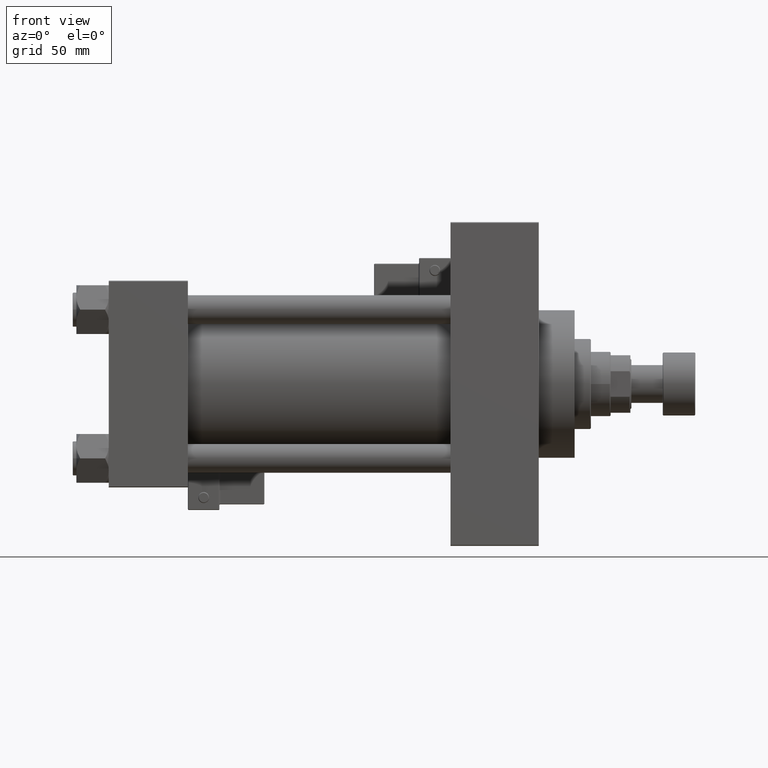
[diagram: clean part render]
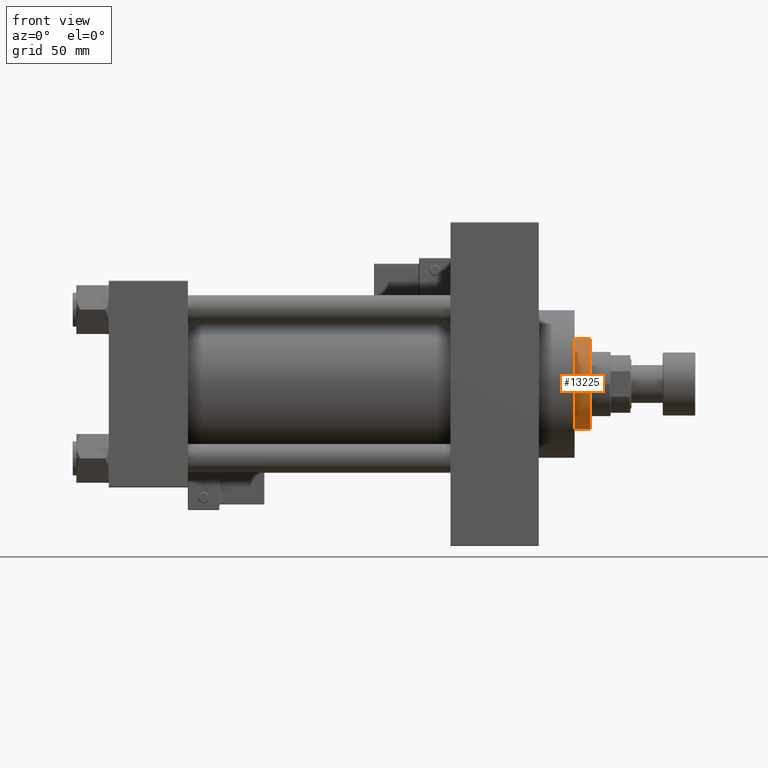
[diagram: same view with one face highlighted and labeled with its STEP entity id]
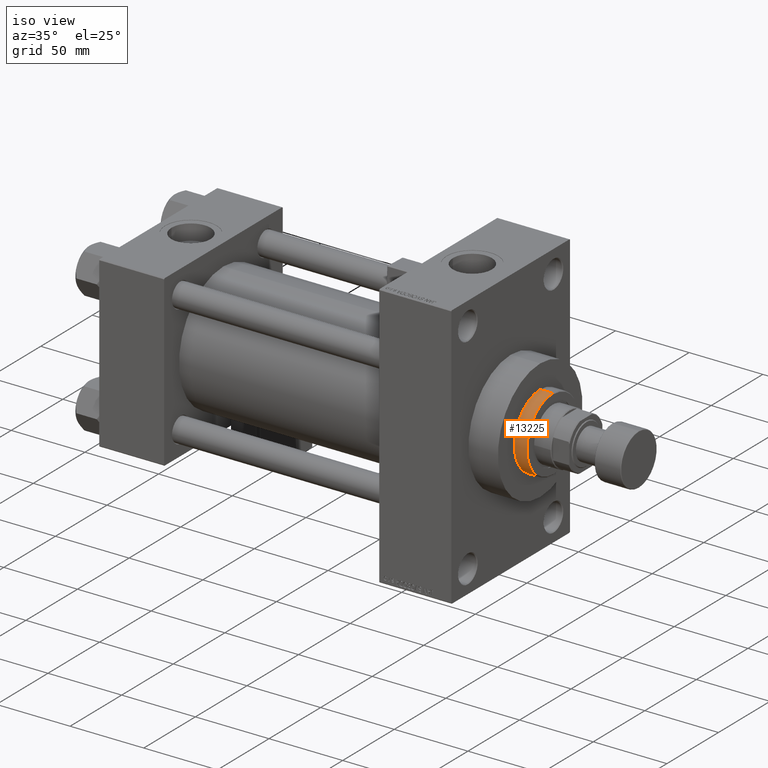
[diagram: same view with one face highlighted and labeled with its STEP entity id]
A machine part, front view. The second image highlights one B-rep face of the part: STEP entity #13225.
A second angle (iso view) of the same face is appended — the face is thin or edge-on in the first view.
In plain terms, the highlighted cylindrical surface (partial cylindrical patch) has radius 25 mm, axis along (-1, 0, 0).
Its self-contained STEP definition (entity closure, byte-faithful):
#788 = CARTESIAN_POINT ( 'NONE',  ( -25.00000000000000000, 0.000000000000000000, 51.75999999999996959 ) ) ;
#1769 = LINE ( 'NONE', #2015, #8395 ) ;
#2015 = CARTESIAN_POINT ( 'NONE',  ( 25.00000000000000000, 3.061616997868383043E-15, 52.25999999999999801 ) ) ;
#3221 = EDGE_CURVE ( 'NONE', #9295, #14076, #1769, .T. ) ;
#5257 = VECTOR ( 'NONE', #36800, 1000.000000000000000 ) ;
#8395 = VECTOR ( 'NONE', #29251, 1000.000000000000000 ) ;
#9111 = CARTESIAN_POINT ( 'NONE',  ( 0.000000000000000000, 0.000000000000000000, 52.25999999999999801 ) ) ;
#9295 = VERTEX_POINT ( 'NONE', #38262 ) ;
#9837 = EDGE_CURVE ( 'NONE', #17893, #46816, #25098, .T. ) ;
#10256 = ORIENTED_EDGE ( 'NONE', *, *, #31096, .T. ) ;
#13225 = ADVANCED_FACE ( 'NONE', ( #45000 ), #43998, .T. ) ;
#14076 = VERTEX_POINT ( 'NONE', #23104 ) ;
#16244 = ORIENTED_EDGE ( 'NONE', *, *, #16331, .T. ) ;
#16331 = EDGE_CURVE ( 'NONE', #17893, #9295, #29851, .T. ) ;
#17005 = DIRECTION ( 'NONE',  ( -0.000000000000000000, -0.000000000000000000, -1.000000000000000000 ) ) ;
#17552 = AXIS2_PLACEMENT_3D ( 'NONE', #27289, #34412, #19138 ) ;
#17893 = VERTEX_POINT ( 'NONE', #788 ) ;
#19138 = DIRECTION ( 'NONE',  ( 1.000000000000000000, 0.000000000000000000, 0.000000000000000000 ) ) ;
#20909 = AXIS2_PLACEMENT_3D ( 'NONE', #39338, #50304, #45983 ) ;
#22450 = AXIS2_PLACEMENT_3D ( 'NONE', #9111, #17005, #24648 ) ;
#23104 = CARTESIAN_POINT ( 'NONE',  ( 25.00000000000000000, 3.061616997868383043E-15, 43.25999999999999801 ) ) ;
#24648 = DIRECTION ( 'NONE',  ( -1.000000000000000000, 0.000000000000000000, 0.000000000000000000 ) ) ;
#25098 = LINE ( 'NONE', #48761, #5257 ) ;
#27289 = CARTESIAN_POINT ( 'NONE',  ( 0.000000000000000000, 0.000000000000000000, 43.25999999999999801 ) ) ;
#29251 = DIRECTION ( 'NONE',  ( -0.000000000000000000, -0.000000000000000000, -1.000000000000000000 ) ) ;
#29851 = CIRCLE ( 'NONE', #20909, 25.00000000000000000 ) ;
#31096 = EDGE_CURVE ( 'NONE', #14076, #46816, #36241, .T. ) ;
#31902 = CARTESIAN_POINT ( 'NONE',  ( -25.00000000000000000, 0.000000000000000000, 43.25999999999999801 ) ) ;
#34412 = DIRECTION ( 'NONE',  ( 0.000000000000000000, 0.000000000000000000, 1.000000000000000000 ) ) ;
#36241 = CIRCLE ( 'NONE', #17552, 25.00000000000000000 ) ;
#36800 = DIRECTION ( 'NONE',  ( -0.000000000000000000, -0.000000000000000000, -1.000000000000000000 ) ) ;
#38262 = CARTESIAN_POINT ( 'NONE',  ( 25.00000000000000000, 3.061616997868383043E-15, 51.75999999999996959 ) ) ;
#38729 = ORIENTED_EDGE ( 'NONE', *, *, #3221, .T. ) ;
#39303 = EDGE_LOOP ( 'NONE', ( #16244, #38729, #10256, #42403 ) ) ;
#39338 = CARTESIAN_POINT ( 'NONE',  ( 0.000000000000000000, 0.000000000000000000, 51.75999999999996959 ) ) ;
#42403 = ORIENTED_EDGE ( 'NONE', *, *, #9837, .F. ) ;
#43998 = CYLINDRICAL_SURFACE ( 'NONE', #22450, 25.00000000000000000 ) ;
#45000 = FACE_OUTER_BOUND ( 'NONE', #39303, .T. ) ;
#45983 = DIRECTION ( 'NONE',  ( 1.000000000000000000, 0.000000000000000000, 0.000000000000000000 ) ) ;
#46816 = VERTEX_POINT ( 'NONE', #31902 ) ;
#48761 = CARTESIAN_POINT ( 'NONE',  ( -25.00000000000000000, 0.000000000000000000, 52.25999999999999801 ) ) ;
#50304 = DIRECTION ( 'NONE',  ( 0.000000000000000000, 0.000000000000000000, -1.000000000000000000 ) ) ;